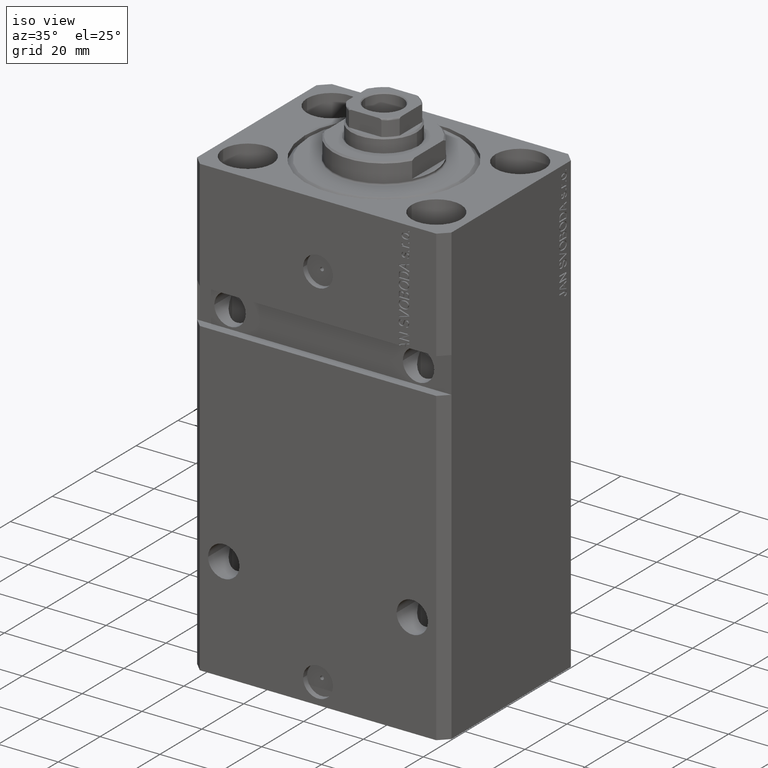
[diagram: clean part render]
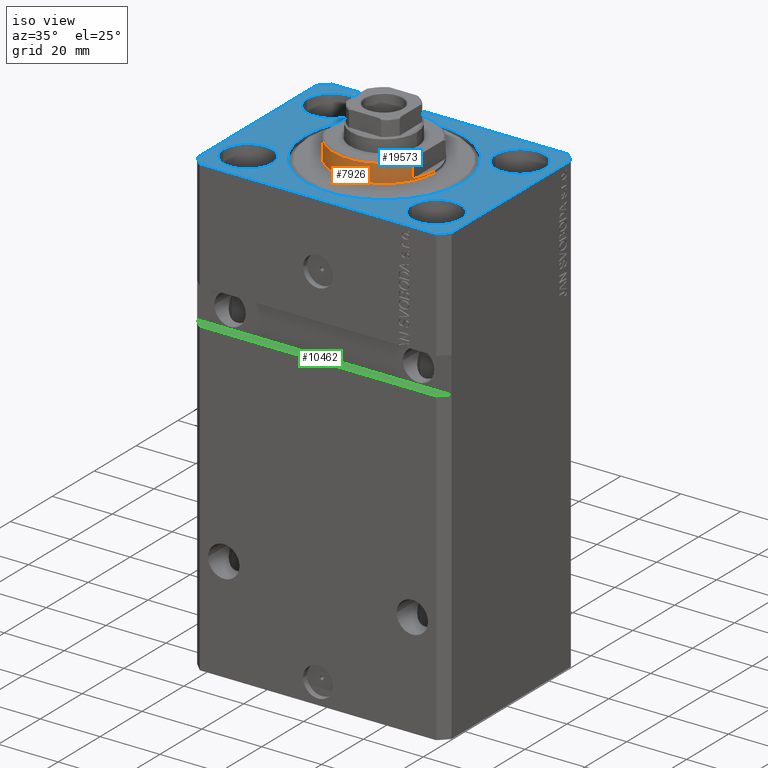
[diagram: same view with three faces highlighted in distinct colors, each labeled with its STEP entity id]
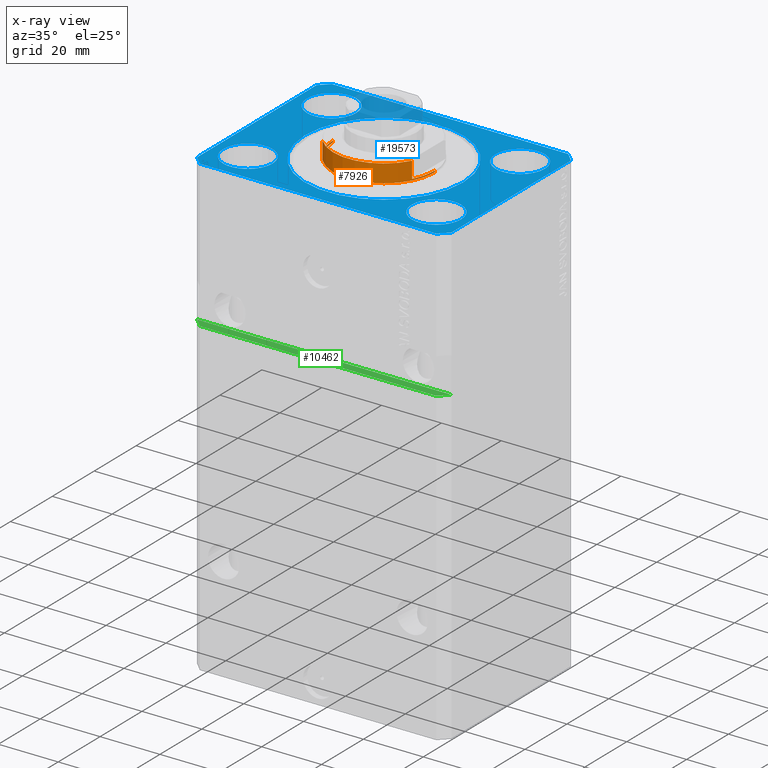
[diagram: x-ray of the same camera — body ghosted, the three highlighted faces saturated]
A machine part, iso view with three faces highlighted in distinct colors.
The next image is the same camera in x-ray (body ghosted, the three faces saturated) — at least one of them is partly hidden behind the body in this view.
Their STEP definitions:

[orange] entity #7926 — the highlighted cylindrical surface (partial cylindrical patch) has radius 17 mm, axis along (0, 0, -1).
#1184 = CARTESIAN_POINT ( 'NONE',  ( -17.00000000000000000, 2.081899558550500280E-15, -1.000000000000000000 ) ) ;
#5585 = CIRCLE ( 'NONE', #35623, 17.00000000000000000 ) ;
#6737 = CYLINDRICAL_SURFACE ( 'NONE', #11332, 17.00000000000000000 ) ;
#7051 = DIRECTION ( 'NONE',  ( -1.000000000000000000, 0.000000000000000000, 0.000000000000000000 ) ) ;
#7402 = VERTEX_POINT ( 'NONE', #12774 ) ;
#7926 = ADVANCED_FACE ( 'NONE', ( #16863 ), #6737, .T. ) ;
#8059 = LINE ( 'NONE', #15838, #33819 ) ;
#8648 = DIRECTION ( 'NONE',  ( -1.000000000000000000, 0.000000000000000000, 0.000000000000000000 ) ) ;
#8870 = DIRECTION ( 'NONE',  ( 0.000000000000000000, 0.000000000000000000, -1.000000000000000000 ) ) ;
#9552 = CARTESIAN_POINT ( 'NONE',  ( -17.00000000000000000, 2.081899558550500280E-15, -7.000000000000000000 ) ) ;
#9981 = VECTOR ( 'NONE', #35299, 1000.000000000000000 ) ;
#10146 = CIRCLE ( 'NONE', #44562, 17.00000000000000000 ) ;
#11295 = EDGE_CURVE ( 'NONE', #20664, #43775, #5585, .T. ) ;
#11332 = AXIS2_PLACEMENT_3D ( 'NONE', #13192, #27177, #31958 ) ;
#11564 = EDGE_CURVE ( 'NONE', #36842, #43775, #40980, .T. ) ;
#11864 = CARTESIAN_POINT ( 'NONE',  ( 15.00000000000000000, -8.000000000000001776, -6.500000000000013323 ) ) ;
#12151 = LINE ( 'NONE', #26817, #29761 ) ;
#12232 = EDGE_CURVE ( 'NONE', #7402, #13264, #12151, .T. ) ;
#12774 = CARTESIAN_POINT ( 'NONE',  ( -14.99999999999999645, -8.000000000000003553, -1.000000000000000000 ) ) ;
#13192 = CARTESIAN_POINT ( 'NONE',  ( 0.000000000000000000, 0.000000000000000000, -7.000000000000000000 ) ) ;
#13264 = VERTEX_POINT ( 'NONE', #37992 ) ;
#14054 = CARTESIAN_POINT ( 'NONE',  ( 0.000000000000000000, 0.000000000000000000, -6.500000000000013323 ) ) ;
#14280 = DIRECTION ( 'NONE',  ( 0.000000000000000000, 0.000000000000000000, 1.000000000000000000 ) ) ;
#14386 = ORIENTED_EDGE ( 'NONE', *, *, #17217, .F. ) ;
#15116 = LINE ( 'NONE', #18114, #9981 ) ;
#15779 = VERTEX_POINT ( 'NONE', #11864 ) ;
#15838 = CARTESIAN_POINT ( 'NONE',  ( 15.00000000000000000, -8.000000000000001776, -7.000000000000000000 ) ) ;
#16211 = EDGE_LOOP ( 'NONE', ( #35991, #34313, #34561, #21686, #38307, #14386, #23185, #27483 ) ) ;
#16863 = FACE_OUTER_BOUND ( 'NONE', #16211, .T. ) ;
#17217 = EDGE_CURVE ( 'NONE', #43766, #35093, #10146, .T. ) ;
#18114 = CARTESIAN_POINT ( 'NONE',  ( 17.00000000000000000, 0.000000000000000000, -7.000000000000000000 ) ) ;
#20664 = VERTEX_POINT ( 'NONE', #31717 ) ;
#21686 = ORIENTED_EDGE ( 'NONE', *, *, #43444, .T. ) ;
#22949 = DIRECTION ( 'NONE',  ( 0.000000000000000000, 0.000000000000000000, -1.000000000000000000 ) ) ;
#23185 = ORIENTED_EDGE ( 'NONE', *, *, #37755, .T. ) ;
#23557 = DIRECTION ( 'NONE',  ( -0.000000000000000000, -0.000000000000000000, 1.000000000000000000 ) ) ;
#23608 = CARTESIAN_POINT ( 'NONE',  ( 0.000000000000000000, 0.000000000000000000, -0.4999999999999995559 ) ) ;
#23626 = EDGE_CURVE ( 'NONE', #7402, #36842, #26351, .T. ) ;
#24061 = AXIS2_PLACEMENT_3D ( 'NONE', #14054, #14280, #35838 ) ;
#24292 = CARTESIAN_POINT ( 'NONE',  ( 14.99999999999999645, -8.000000000000003553, -1.000000000000000000 ) ) ;
#26176 = EDGE_CURVE ( 'NONE', #35093, #15779, #8059, .T. ) ;
#26351 = CIRCLE ( 'NONE', #40996, 17.00000000000000000 ) ;
#26817 = CARTESIAN_POINT ( 'NONE',  ( -15.00000000000000000, -8.000000000000001776, -7.000000000000000000 ) ) ;
#27177 = DIRECTION ( 'NONE',  ( -0.000000000000000000, -0.000000000000000000, 1.000000000000000000 ) ) ;
#27268 = DIRECTION ( 'NONE',  ( 1.000000000000000000, 0.000000000000000000, 0.000000000000000000 ) ) ;
#27483 = ORIENTED_EDGE ( 'NONE', *, *, #11295, .T. ) ;
#27938 = CARTESIAN_POINT ( 'NONE',  ( 0.000000000000000000, 0.000000000000000000, -1.000000000000000000 ) ) ;
#28463 = CARTESIAN_POINT ( 'NONE',  ( -17.00000000000000000, 2.081899558550500280E-15, -0.4999999999999995559 ) ) ;
#29761 = VECTOR ( 'NONE', #43333, 1000.000000000000000 ) ;
#31717 = CARTESIAN_POINT ( 'NONE',  ( 17.00000000000000000, 0.000000000000000000, -0.4999999999999995559 ) ) ;
#31958 = DIRECTION ( 'NONE',  ( 1.000000000000000000, 0.000000000000000000, 0.000000000000000000 ) ) ;
#33576 = CIRCLE ( 'NONE', #24061, 17.00000000000000000 ) ;
#33819 = VECTOR ( 'NONE', #22949, 1000.000000000000000 ) ;
#34313 = ORIENTED_EDGE ( 'NONE', *, *, #23626, .F. ) ;
#34561 = ORIENTED_EDGE ( 'NONE', *, *, #12232, .T. ) ;
#35093 = VERTEX_POINT ( 'NONE', #24292 ) ;
#35299 = DIRECTION ( 'NONE',  ( -0.000000000000000000, -0.000000000000000000, 1.000000000000000000 ) ) ;
#35623 = AXIS2_PLACEMENT_3D ( 'NONE', #23608, #37594, #27268 ) ;
#35783 = CARTESIAN_POINT ( 'NONE',  ( 17.00000000000000000, 0.000000000000000000, -1.000000000000000000 ) ) ;
#35838 = DIRECTION ( 'NONE',  ( -1.000000000000000000, 0.000000000000000000, 0.000000000000000000 ) ) ;
#35991 = ORIENTED_EDGE ( 'NONE', *, *, #11564, .F. ) ;
#36842 = VERTEX_POINT ( 'NONE', #1184 ) ;
#37104 = VECTOR ( 'NONE', #23557, 1000.000000000000000 ) ;
#37594 = DIRECTION ( 'NONE',  ( -0.000000000000000000, -0.000000000000000000, -1.000000000000000000 ) ) ;
#37755 = EDGE_CURVE ( 'NONE', #43766, #20664, #15116, .T. ) ;
#37992 = CARTESIAN_POINT ( 'NONE',  ( -15.00000000000000000, -8.000000000000001776, -6.500000000000014211 ) ) ;
#38307 = ORIENTED_EDGE ( 'NONE', *, *, #26176, .F. ) ;
#38478 = DIRECTION ( 'NONE',  ( 0.000000000000000000, 0.000000000000000000, -1.000000000000000000 ) ) ;
#40074 = CARTESIAN_POINT ( 'NONE',  ( 0.000000000000000000, 0.000000000000000000, -1.000000000000000000 ) ) ;
#40980 = LINE ( 'NONE', #9552, #37104 ) ;
#40996 = AXIS2_PLACEMENT_3D ( 'NONE', #27938, #38478, #7051 ) ;
#43333 = DIRECTION ( 'NONE',  ( 0.000000000000000000, 0.000000000000000000, -1.000000000000000000 ) ) ;
#43444 = EDGE_CURVE ( 'NONE', #13264, #15779, #33576, .T. ) ;
#43766 = VERTEX_POINT ( 'NONE', #35783 ) ;
#43775 = VERTEX_POINT ( 'NONE', #28463 ) ;
#44562 = AXIS2_PLACEMENT_3D ( 'NONE', #40074, #8870, #8648 ) ;

[blue] entity #19573 — the highlighted planar face has unit normal (0, 0, 1).
#324 = DIRECTION ( 'NONE',  ( 0.000000000000000000, 0.000000000000000000, 1.000000000000000000 ) ) ;
#388 = CARTESIAN_POINT ( 'NONE',  ( -42.50000000000000000, 28.50000000000000000, 0.000000000000000000 ) ) ;
#590 = AXIS2_PLACEMENT_3D ( 'NONE', #42654, #41965, #45188 ) ;
#670 = CARTESIAN_POINT ( 'NONE',  ( -23.25000000000000000, -20.00000000000000000, 0.000000000000000000 ) ) ;
#932 = DIRECTION ( 'NONE',  ( 0.000000000000000000, 0.000000000000000000, 1.000000000000000000 ) ) ;
#1240 = CIRCLE ( 'NONE', #21788, 8.249999999999992895 ) ;
#1587 = DIRECTION ( 'NONE',  ( 1.000000000000000000, 0.000000000000000000, 0.000000000000000000 ) ) ;
#1722 = ORIENTED_EDGE ( 'NONE', *, *, #11107, .T. ) ;
#2562 = CARTESIAN_POINT ( 'NONE',  ( -39.50000000000000711, -31.50000000000000000, 0.000000000000000000 ) ) ;
#2618 = VECTOR ( 'NONE', #45247, 1000.000000000000000 ) ;
#2848 = EDGE_CURVE ( 'NONE', #11385, #5920, #36934, .T. ) ;
#2889 = DIRECTION ( 'NONE',  ( 1.000000000000000000, 0.000000000000000000, -0.000000000000000000 ) ) ;
#3215 = CARTESIAN_POINT ( 'NONE',  ( 39.50000000000000711, -31.50000000000000000, 0.000000000000000000 ) ) ;
#3355 = CIRCLE ( 'NONE', #42200, 26.50000000000000355 ) ;
#3377 = LINE ( 'NONE', #27942, #26781 ) ;
#3461 = DIRECTION ( 'NONE',  ( 1.000000000000000000, 0.000000000000000000, 0.000000000000000000 ) ) ;
#3556 = PLANE ( 'NONE',  #42436 ) ;
#3652 = VERTEX_POINT ( 'NONE', #38808 ) ;
#3900 = CARTESIAN_POINT ( 'NONE',  ( 31.50000000000000000, -20.00000000000000000, 0.000000000000000000 ) ) ;
#4112 = ORIENTED_EDGE ( 'NONE', *, *, #42979, .F. ) ;
#4267 = ORIENTED_EDGE ( 'NONE', *, *, #5958, .T. ) ;
#4605 = CARTESIAN_POINT ( 'NONE',  ( 31.50000000000000000, 20.00000000000001066, 0.000000000000000000 ) ) ;
#4942 = VERTEX_POINT ( 'NONE', #29932 ) ;
#5232 = VERTEX_POINT ( 'NONE', #670 ) ;
#5556 = LINE ( 'NONE', #15664, #7739 ) ;
#5920 = VERTEX_POINT ( 'NONE', #12455 ) ;
#5958 = EDGE_CURVE ( 'NONE', #21964, #3652, #5556, .T. ) ;
#6162 = LINE ( 'NONE', #9831, #12245 ) ;
#6264 = LINE ( 'NONE', #38154, #2618 ) ;
#6483 = VERTEX_POINT ( 'NONE', #21272 ) ;
#6818 = VERTEX_POINT ( 'NONE', #23977 ) ;
#7342 = CARTESIAN_POINT ( 'NONE',  ( -42.50000000000000000, -28.50000000000000000, 0.000000000000000000 ) ) ;
#7613 = EDGE_CURVE ( 'NONE', #22195, #22675, #13015, .T. ) ;
#7739 = VECTOR ( 'NONE', #19117, 1000.000000000000000 ) ;
#8338 = VECTOR ( 'NONE', #45328, 1000.000000000000000 ) ;
#9831 = CARTESIAN_POINT ( 'NONE',  ( 42.50000000000051870, 28.49999999999995381, 0.000000000000000000 ) ) ;
#9895 = CARTESIAN_POINT ( 'NONE',  ( -31.50000000000000000, 20.00000000000000000, 0.000000000000000000 ) ) ;
#9907 = EDGE_CURVE ( 'NONE', #5232, #41294, #26061, .T. ) ;
#9994 = FACE_BOUND ( 'NONE', #37707, .T. ) ;
#10350 = DIRECTION ( 'NONE',  ( 0.000000000000000000, 0.000000000000000000, 1.000000000000000000 ) ) ;
#10560 = EDGE_CURVE ( 'NONE', #22675, #37005, #3377, .T. ) ;
#10679 = FACE_OUTER_BOUND ( 'NONE', #11693, .T. ) ;
#10731 = CARTESIAN_POINT ( 'NONE',  ( -39.50000000000000711, -31.50000000000000000, 0.000000000000000000 ) ) ;
#10969 = ORIENTED_EDGE ( 'NONE', *, *, #14525, .F. ) ;
#11107 = EDGE_CURVE ( 'NONE', #37005, #23601, #6264, .T. ) ;
#11385 = VERTEX_POINT ( 'NONE', #41917 ) ;
#11679 = EDGE_CURVE ( 'NONE', #40734, #23527, #3355, .T. ) ;
#11693 = EDGE_LOOP ( 'NONE', ( #26047, #34731, #36950, #1722, #41670, #43899, #4267, #19828 ) ) ;
#12245 = VECTOR ( 'NONE', #34592, 1000.000000000000114 ) ;
#12455 = CARTESIAN_POINT ( 'NONE',  ( 23.25000000000000355, 20.00000000000001066, 0.000000000000000000 ) ) ;
#13015 = LINE ( 'NONE', #20123, #39171 ) ;
#13360 = CARTESIAN_POINT ( 'NONE',  ( -31.50000000000000000, -20.00000000000000000, 0.000000000000000000 ) ) ;
#13775 = EDGE_CURVE ( 'NONE', #37743, #14965, #1240, .T. ) ;
#13979 = EDGE_CURVE ( 'NONE', #3652, #4942, #6162, .T. ) ;
#14210 = EDGE_LOOP ( 'NONE', ( #38315, #32337 ) ) ;
#14346 = DIRECTION ( 'NONE',  ( 0.000000000000000000, 0.000000000000000000, 1.000000000000000000 ) ) ;
#14525 = EDGE_CURVE ( 'NONE', #6483, #6818, #39364, .T. ) ;
#14670 = EDGE_CURVE ( 'NONE', #23601, #26133, #33971, .T. ) ;
#14965 = VERTEX_POINT ( 'NONE', #35506 ) ;
#15235 = EDGE_CURVE ( 'NONE', #14965, #37743, #43761, .T. ) ;
#15664 = CARTESIAN_POINT ( 'NONE',  ( 42.50000000000000711, -28.50000000000000355, 0.000000000000000000 ) ) ;
#15715 = EDGE_LOOP ( 'NONE', ( #10969, #4112 ) ) ;
#16825 = CARTESIAN_POINT ( 'NONE',  ( 42.50000000000000711, -28.50000000000000355, 0.000000000000000000 ) ) ;
#17005 = ORIENTED_EDGE ( 'NONE', *, *, #11679, .F. ) ;
#17770 = DIRECTION ( 'NONE',  ( 1.000000000000000000, 0.000000000000000000, 0.000000000000000000 ) ) ;
#17795 = DIRECTION ( 'NONE',  ( 1.000000000000000000, 0.000000000000000000, 0.000000000000000000 ) ) ;
#18037 = CARTESIAN_POINT ( 'NONE',  ( 31.50000000000000000, -20.00000000000000000, 0.000000000000000000 ) ) ;
#19117 = DIRECTION ( 'NONE',  ( 8.886653596232072440E-15, 1.000000000000000000, 0.000000000000000000 ) ) ;
#19573 = ADVANCED_FACE ( 'NONE', ( #27215, #41198, #9994, #42081, #20335, #10679 ), #3556, .T. ) ;
#19581 = AXIS2_PLACEMENT_3D ( 'NONE', #9895, #10350, #44542 ) ;
#19676 = CIRCLE ( 'NONE', #31354, 8.250000000000000000 ) ;
#19828 = ORIENTED_EDGE ( 'NONE', *, *, #13979, .T. ) ;
#19932 = CIRCLE ( 'NONE', #25063, 8.250000000000000000 ) ;
#20123 = CARTESIAN_POINT ( 'NONE',  ( -39.50000000000000711, 31.50000000000000000, 0.000000000000000000 ) ) ;
#20131 = CARTESIAN_POINT ( 'NONE',  ( 39.50000000000056843, 31.50000000000000000, 0.000000000000000000 ) ) ;
#20335 = FACE_BOUND ( 'NONE', #40712, .T. ) ;
#20795 = LINE ( 'NONE', #20131, #8338 ) ;
#20912 = CARTESIAN_POINT ( 'NONE',  ( 39.50000000000000711, -31.50000000000000000, 0.000000000000000000 ) ) ;
#21007 = CARTESIAN_POINT ( 'NONE',  ( 0.000000000000000000, 0.000000000000000000, 0.000000000000000000 ) ) ;
#21214 = DIRECTION ( 'NONE',  ( 0.000000000000000000, 0.000000000000000000, 1.000000000000000000 ) ) ;
#21272 = CARTESIAN_POINT ( 'NONE',  ( -23.25000000000000000, 20.00000000000000000, 0.000000000000000000 ) ) ;
#21788 = AXIS2_PLACEMENT_3D ( 'NONE', #3900, #32123, #42447 ) ;
#21964 = VERTEX_POINT ( 'NONE', #16825 ) ;
#22022 = ORIENTED_EDGE ( 'NONE', *, *, #42774, .F. ) ;
#22195 = VERTEX_POINT ( 'NONE', #23643 ) ;
#22562 = CIRCLE ( 'NONE', #590, 26.50000000000000355 ) ;
#22675 = VERTEX_POINT ( 'NONE', #388 ) ;
#23237 = DIRECTION ( 'NONE',  ( 1.000000000000000000, 0.000000000000000000, 0.000000000000000000 ) ) ;
#23527 = VERTEX_POINT ( 'NONE', #26797 ) ;
#23601 = VERTEX_POINT ( 'NONE', #10731 ) ;
#23643 = CARTESIAN_POINT ( 'NONE',  ( -39.50000000000000711, 31.50000000000000000, 0.000000000000000000 ) ) ;
#23977 = CARTESIAN_POINT ( 'NONE',  ( -39.75000000000000000, 20.00000000000000000, 0.000000000000000000 ) ) ;
#24006 = AXIS2_PLACEMENT_3D ( 'NONE', #18037, #42101, #28364 ) ;
#24559 = AXIS2_PLACEMENT_3D ( 'NONE', #4605, #324, #37964 ) ;
#24573 = CARTESIAN_POINT ( 'NONE',  ( 31.50000000000000000, 20.00000000000001066, 0.000000000000000000 ) ) ;
#24674 = CARTESIAN_POINT ( 'NONE',  ( 0.000000000000000000, 0.000000000000000000, 0.000000000000000000 ) ) ;
#25063 = AXIS2_PLACEMENT_3D ( 'NONE', #13360, #40648, #23237 ) ;
#25110 = ORIENTED_EDGE ( 'NONE', *, *, #2848, .F. ) ;
#26045 = EDGE_CURVE ( 'NONE', #41294, #5232, #19932, .T. ) ;
#26047 = ORIENTED_EDGE ( 'NONE', *, *, #28961, .T. ) ;
#26061 = CIRCLE ( 'NONE', #45106, 8.250000000000000000 ) ;
#26133 = VERTEX_POINT ( 'NONE', #20912 ) ;
#26530 = CARTESIAN_POINT ( 'NONE',  ( -26.50000000000000355, 3.245314017740486554E-15, 0.000000000000000000 ) ) ;
#26748 = CIRCLE ( 'NONE', #24559, 8.249999999999992895 ) ;
#26781 = VECTOR ( 'NONE', #29302, 1000.000000000000000 ) ;
#26797 = CARTESIAN_POINT ( 'NONE',  ( 26.50000000000000355, 0.000000000000000000, 0.000000000000000000 ) ) ;
#26890 = CARTESIAN_POINT ( 'NONE',  ( -39.75000000000000000, -20.00000000000000000, 0.000000000000000000 ) ) ;
#26981 = VECTOR ( 'NONE', #37650, 1000.000000000000000 ) ;
#27215 = FACE_BOUND ( 'NONE', #30183, .T. ) ;
#27666 = DIRECTION ( 'NONE',  ( 0.000000000000000000, 0.000000000000000000, 1.000000000000000000 ) ) ;
#27778 = LINE ( 'NONE', #3215, #26981 ) ;
#27942 = CARTESIAN_POINT ( 'NONE',  ( -42.50000000000000000, 28.50000000000000000, 0.000000000000000000 ) ) ;
#27998 = ORIENTED_EDGE ( 'NONE', *, *, #26045, .F. ) ;
#28364 = DIRECTION ( 'NONE',  ( 1.000000000000000000, 0.000000000000000000, 0.000000000000000000 ) ) ;
#28961 = EDGE_CURVE ( 'NONE', #4942, #22195, #20795, .T. ) ;
#29302 = DIRECTION ( 'NONE',  ( 0.000000000000000000, -1.000000000000000000, 0.000000000000000000 ) ) ;
#29932 = CARTESIAN_POINT ( 'NONE',  ( 39.50000000000056843, 31.50000000000000000, 0.000000000000000000 ) ) ;
#30183 = EDGE_LOOP ( 'NONE', ( #35540, #27998 ) ) ;
#30783 = DIRECTION ( 'NONE',  ( 1.000000000000000000, 0.000000000000000000, 0.000000000000000000 ) ) ;
#31354 = AXIS2_PLACEMENT_3D ( 'NONE', #36225, #33003, #1587 ) ;
#31373 = EDGE_CURVE ( 'NONE', #5920, #11385, #26748, .T. ) ;
#32123 = DIRECTION ( 'NONE',  ( 0.000000000000000000, 0.000000000000000000, 1.000000000000000000 ) ) ;
#32337 = ORIENTED_EDGE ( 'NONE', *, *, #13775, .F. ) ;
#33003 = DIRECTION ( 'NONE',  ( 0.000000000000000000, 0.000000000000000000, 1.000000000000000000 ) ) ;
#33971 = LINE ( 'NONE', #2562, #43013 ) ;
#34092 = DIRECTION ( 'NONE',  ( -0.7071067811865471286, -0.7071067811865479058, 0.000000000000000000 ) ) ;
#34592 = DIRECTION ( 'NONE',  ( -0.7071067811865356934, 0.7071067811865594521, 0.000000000000000000 ) ) ;
#34731 = ORIENTED_EDGE ( 'NONE', *, *, #7613, .T. ) ;
#35506 = CARTESIAN_POINT ( 'NONE',  ( 39.74999999999999289, -20.00000000000000000, 0.000000000000000000 ) ) ;
#35528 = CARTESIAN_POINT ( 'NONE',  ( 23.25000000000000355, -20.00000000000000000, 0.000000000000000000 ) ) ;
#35540 = ORIENTED_EDGE ( 'NONE', *, *, #9907, .F. ) ;
#36225 = CARTESIAN_POINT ( 'NONE',  ( -31.50000000000000000, 20.00000000000000000, 0.000000000000000000 ) ) ;
#36934 = CIRCLE ( 'NONE', #37668, 8.249999999999992895 ) ;
#36950 = ORIENTED_EDGE ( 'NONE', *, *, #10560, .T. ) ;
#37005 = VERTEX_POINT ( 'NONE', #7342 ) ;
#37650 = DIRECTION ( 'NONE',  ( 0.7071067811865483499, 0.7071067811865466846, 0.000000000000000000 ) ) ;
#37668 = AXIS2_PLACEMENT_3D ( 'NONE', #24573, #932, #3461 ) ;
#37707 = EDGE_LOOP ( 'NONE', ( #25110, #41298 ) ) ;
#37743 = VERTEX_POINT ( 'NONE', #35528 ) ;
#37964 = DIRECTION ( 'NONE',  ( 1.000000000000000000, 0.000000000000000000, 0.000000000000000000 ) ) ;
#38154 = CARTESIAN_POINT ( 'NONE',  ( -42.50000000000000000, -28.50000000000000000, 0.000000000000000000 ) ) ;
#38315 = ORIENTED_EDGE ( 'NONE', *, *, #15235, .F. ) ;
#38411 = CARTESIAN_POINT ( 'NONE',  ( -31.50000000000000000, -20.00000000000000000, 0.000000000000000000 ) ) ;
#38808 = CARTESIAN_POINT ( 'NONE',  ( 42.50000000000051870, 28.49999999999995381, 0.000000000000000000 ) ) ;
#39171 = VECTOR ( 'NONE', #34092, 1000.000000000000000 ) ;
#39364 = CIRCLE ( 'NONE', #19581, 8.250000000000000000 ) ;
#40648 = DIRECTION ( 'NONE',  ( 0.000000000000000000, 0.000000000000000000, 1.000000000000000000 ) ) ;
#40712 = EDGE_LOOP ( 'NONE', ( #22022, #17005 ) ) ;
#40734 = VERTEX_POINT ( 'NONE', #26530 ) ;
#41198 = FACE_BOUND ( 'NONE', #14210, .T. ) ;
#41294 = VERTEX_POINT ( 'NONE', #26890 ) ;
#41298 = ORIENTED_EDGE ( 'NONE', *, *, #31373, .F. ) ;
#41670 = ORIENTED_EDGE ( 'NONE', *, *, #14670, .T. ) ;
#41917 = CARTESIAN_POINT ( 'NONE',  ( 39.74999999999999289, 20.00000000000001066, 0.000000000000000000 ) ) ;
#41965 = DIRECTION ( 'NONE',  ( 0.000000000000000000, 0.000000000000000000, 1.000000000000000000 ) ) ;
#42081 = FACE_BOUND ( 'NONE', #15715, .T. ) ;
#42101 = DIRECTION ( 'NONE',  ( 0.000000000000000000, 0.000000000000000000, 1.000000000000000000 ) ) ;
#42200 = AXIS2_PLACEMENT_3D ( 'NONE', #21007, #14346, #17795 ) ;
#42436 = AXIS2_PLACEMENT_3D ( 'NONE', #24674, #27666, #2889 ) ;
#42447 = DIRECTION ( 'NONE',  ( 1.000000000000000000, 0.000000000000000000, 0.000000000000000000 ) ) ;
#42654 = CARTESIAN_POINT ( 'NONE',  ( 0.000000000000000000, 0.000000000000000000, 0.000000000000000000 ) ) ;
#42774 = EDGE_CURVE ( 'NONE', #23527, #40734, #22562, .T. ) ;
#42979 = EDGE_CURVE ( 'NONE', #6818, #6483, #19676, .T. ) ;
#43013 = VECTOR ( 'NONE', #30783, 1000.000000000000000 ) ;
#43706 = EDGE_CURVE ( 'NONE', #26133, #21964, #27778, .T. ) ;
#43761 = CIRCLE ( 'NONE', #24006, 8.249999999999992895 ) ;
#43899 = ORIENTED_EDGE ( 'NONE', *, *, #43706, .T. ) ;
#44542 = DIRECTION ( 'NONE',  ( 1.000000000000000000, 0.000000000000000000, 0.000000000000000000 ) ) ;
#45106 = AXIS2_PLACEMENT_3D ( 'NONE', #38411, #21214, #17770 ) ;
#45188 = DIRECTION ( 'NONE',  ( 1.000000000000000000, 0.000000000000000000, 0.000000000000000000 ) ) ;
#45247 = DIRECTION ( 'NONE',  ( 0.7071067811865471286, -0.7071067811865479058, 0.000000000000000000 ) ) ;
#45328 = DIRECTION ( 'NONE',  ( -1.000000000000000000, 0.000000000000000000, 0.000000000000000000 ) ) ;

[green] entity #10462 — the highlighted planar face has unit normal (0, 0, -1).
#2035 = VERTEX_POINT ( 'NONE', #45202 ) ;
#3152 = PLANE ( 'NONE',  #33377 ) ;
#5897 = EDGE_CURVE ( 'NONE', #42293, #8758, #31736, .T. ) ;
#6377 = CARTESIAN_POINT ( 'NONE',  ( -42.50000000000001421, -28.50000000000000711, -48.99999999999999289 ) ) ;
#7183 = DIRECTION ( 'NONE',  ( 1.000000000000000000, 1.632680918566406054E-16, 1.632680918566406054E-16 ) ) ;
#8758 = VERTEX_POINT ( 'NONE', #42845 ) ;
#9318 = ORIENTED_EDGE ( 'NONE', *, *, #17199, .T. ) ;
#10462 = ADVANCED_FACE ( 'NONE', ( #13940 ), #3152, .F. ) ;
#10520 = CARTESIAN_POINT ( 'NONE',  ( -42.50000000000001421, -28.50000000000000711, -48.99999999999999289 ) ) ;
#12092 = DIRECTION ( 'NONE',  ( 0.7071067811865471286, -0.7071067811865479058, 1.154479749032186020E-16 ) ) ;
#13940 = FACE_OUTER_BOUND ( 'NONE', #42082, .T. ) ;
#14423 = LINE ( 'NONE', #10520, #26617 ) ;
#14547 = VECTOR ( 'NONE', #12092, 1000.000000000000000 ) ;
#14552 = DIRECTION ( 'NONE',  ( 0.7071067811865483499, 0.7071067811865466846, 1.154479749032188485E-16 ) ) ;
#15532 = LINE ( 'NONE', #29526, #14547 ) ;
#15784 = VECTOR ( 'NONE', #14552, 1000.000000000000000 ) ;
#17157 = DIRECTION ( 'NONE',  ( 1.632680918566405807E-16, 1.920169436079225637E-32, -1.000000000000000000 ) ) ;
#17199 = EDGE_CURVE ( 'NONE', #2035, #26984, #15532, .T. ) ;
#17581 = CARTESIAN_POINT ( 'NONE',  ( -39.50000000000000000, -31.50000000000000711, -48.99999999999999289 ) ) ;
#18278 = ORIENTED_EDGE ( 'NONE', *, *, #27985, .F. ) ;
#20309 = VECTOR ( 'NONE', #7183, 1000.000000000000000 ) ;
#25550 = CARTESIAN_POINT ( 'NONE',  ( 39.50000000000000000, -31.50000000000000711, -48.99999999999997158 ) ) ;
#26291 = ORIENTED_EDGE ( 'NONE', *, *, #40231, .T. ) ;
#26617 = VECTOR ( 'NONE', #35508, 1000.000000000000000 ) ;
#26984 = VERTEX_POINT ( 'NONE', #17581 ) ;
#27985 = EDGE_CURVE ( 'NONE', #2035, #8758, #14423, .T. ) ;
#29526 = CARTESIAN_POINT ( 'NONE',  ( -42.50000000000000711, -28.49999999999999289, -48.99999999999998579 ) ) ;
#29746 = ORIENTED_EDGE ( 'NONE', *, *, #5897, .T. ) ;
#31716 = CARTESIAN_POINT ( 'NONE',  ( -42.50000000000001421, -31.50000000000000711, -48.99999999999999289 ) ) ;
#31736 = LINE ( 'NONE', #25550, #15784 ) ;
#33377 = AXIS2_PLACEMENT_3D ( 'NONE', #6377, #17157, #42136 ) ;
#35508 = DIRECTION ( 'NONE',  ( 1.000000000000000000, 1.632680918566406054E-16, 1.632680918566406054E-16 ) ) ;
#40231 = EDGE_CURVE ( 'NONE', #26984, #42293, #45027, .T. ) ;
#42082 = EDGE_LOOP ( 'NONE', ( #29746, #18278, #9318, #26291 ) ) ;
#42136 = DIRECTION ( 'NONE',  ( -1.000000000000000000, 0.000000000000000000, -1.632680918566405807E-16 ) ) ;
#42293 = VERTEX_POINT ( 'NONE', #42904 ) ;
#42845 = CARTESIAN_POINT ( 'NONE',  ( 42.50000000000001421, -28.49999999999999289, -48.99999999999997868 ) ) ;
#42904 = CARTESIAN_POINT ( 'NONE',  ( 39.50000000000000000, -31.49999999999999289, -48.99999999999997868 ) ) ;
#45027 = LINE ( 'NONE', #31716, #20309 ) ;
#45202 = CARTESIAN_POINT ( 'NONE',  ( -42.50000000000001421, -28.50000000000000711, -48.99999999999999289 ) ) ;